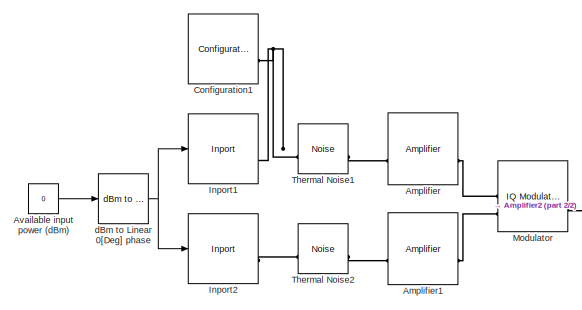
[diagram: root canvas - part 1/2, left side, full height]
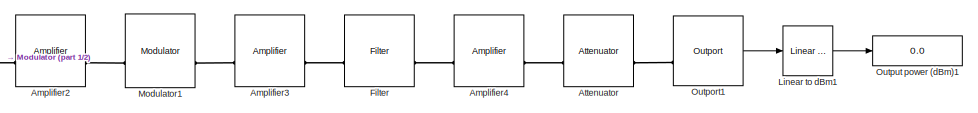
[diagram: root canvas - part 2/2, middle right region]
MODEL slx_ffc1e1ff5e8a
KIND model
CONFIG AbsTol = auto
CONFIG EnableMultiTasking = off
CONFIG FixedStep = auto
CONFIG MaxStep = auto
CONFIG MinStep = auto
CONFIG RelTol = 1e-3
CONFIG SampleTimeConstraint = Unconstrained
CONFIG SolverName = VariableStepAuto
CONFIG StartTime = 0.0
CONFIG StopTime = 0
BLOCK [Reference] Amplifier  REF=simrfV2elements/Amplifier
  SourceBlock = simrfV2elements/Amplifier
  SourceType = Amplifier
  UserDataPersistent = on
BLOCK [Reference] Amplifier1  REF=simrfV2elements/Amplifier
  SourceBlock = simrfV2elements/Amplifier
  SourceType = Amplifier
  UserDataPersistent = on
BLOCK [Reference] Amplifier2  REF=simrfV2elements/Amplifier
  SourceBlock = simrfV2elements/Amplifier
  SourceType = Amplifier
  UserDataPersistent = on
BLOCK [Reference] Amplifier3  REF=simrfV2elements/Amplifier
  SourceBlock = simrfV2elements/Amplifier
  SourceType = Amplifier
  UserDataPersistent = on
BLOCK [Reference] Amplifier4  REF=simrfV2elements/Amplifier
  SourceBlock = simrfV2elements/Amplifier
  SourceType = Amplifier
  UserDataPersistent = on
BLOCK [Reference] Attenuator  REF=simrfV2elements/Attenuator
  SourceBlock = simrfV2elements/Attenuator
  SourceType = Attenuator
BLOCK [Constant] Available input power (dBm)
  Value = 0
BLOCK [Reference] Configuration1  REF=simrfV2util1/Configuration
  SourceBlock = simrfV2util1/Configuration
  SourceType = Configuration
BLOCK [Reference] Filter  REF=simrfV2elements/Filter
  SourceBlock = simrfV2elements/Filter
  SourceType = Filter
  UserDataPersistent = on
BLOCK [Reference] Inport1  REF=simrfV2util1/Inport
  SourceBlock = simrfV2util1/Inport
  SourceType = Inport
BLOCK [Reference] Inport2  REF=simrfV2util1/Inport
  SourceBlock = simrfV2util1/Inport
  SourceType = Inport
BLOCK [Reference] Linear to dBm1  REF=rfBudgetAnalyzer_lib/Linear to dBm
  SourceBlock = rfBudgetAnalyzer_lib/Linear to dBm
  SourceType = SubSystem
BLOCK [Reference] Modulator  REF=simrfV2systems/IQ Modulator
  SourceBlock = simrfV2systems/IQ Modulator
  SourceType = IQ Modulator
BLOCK [Reference] Modulator1  REF=simrfV2systems/Modulator
  SourceBlock = simrfV2systems/Modulator
  SourceType = Modulator
BLOCK [Reference] Outport1  REF=simrfV2util1/Outport
  SourceBlock = simrfV2util1/Outport
  SourceType = Outport
BLOCK [Display] Output power (dBm)1
  Decimation = 1
BLOCK [Reference] Thermal Noise1  REF=simrfV2sources1/Noise
  SourceBlock = simrfV2sources1/Noise
  SourceType = Noise Source
BLOCK [Reference] Thermal Noise2  REF=simrfV2sources1/Noise
  SourceBlock = simrfV2sources1/Noise
  SourceType = Noise Source
BLOCK [Reference] dBm to Linear 0[Deg] phase  REF=rfBudgetAnalyzer_lib/dBm to Linear
  SourceBlock = rfBudgetAnalyzer_lib/dBm to Linear
  SourceType = SubSystem
LINE Available input power (dBm):1 -> dBm to Linear 0[Deg] phase:1
LINE Linear to dBm1:1 -> Output power (dBm)1:1
LINE Outport1:1 -> Linear to dBm1:1
NET dBm to Linear 0[Deg] phase:1 -> Inport1:1, Inport2:1
PLINE Amplifier1:LConn1 -- Thermal Noise2:LConn1
PLINE Amplifier1:RConn1 -- Modulator:LConn2
PLINE Amplifier2:LConn1 -- Modulator:RConn1
PLINE Amplifier2:RConn1 -- Modulator1:LConn1
PLINE Amplifier3:LConn1 -- Modulator1:RConn1
PLINE Amplifier3:RConn1 -- Filter:LConn1
PLINE Amplifier4:LConn1 -- Filter:RConn1
PLINE Amplifier4:RConn1 -- Attenuator:LConn1
PLINE Amplifier:LConn1 -- Thermal Noise1:LConn1
PLINE Amplifier:RConn1 -- Modulator:LConn1
PLINE Attenuator:RConn1 -- Outport1:LConn1
PNET net1: Configuration1:LConn1 -- Inport1:RConn1 -- Thermal Noise1:RConn1
PLINE Inport2:RConn1 -- Thermal Noise2:RConn1
note: NET lines group one-source signal fan-out (src -> all destinations, sorted); 1:1 wires keep LINE; PNET lines group multi-terminal physical nets as a canonical sorted terminal list (undirected conserving connections); 2-terminal nets keep the pairwise PLINE form
